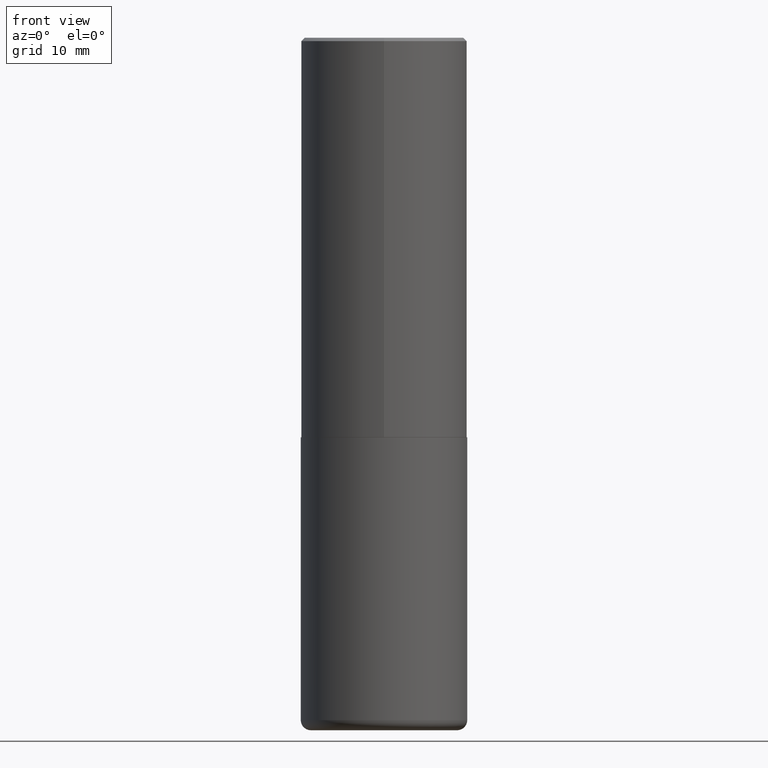
[diagram: clean part render]
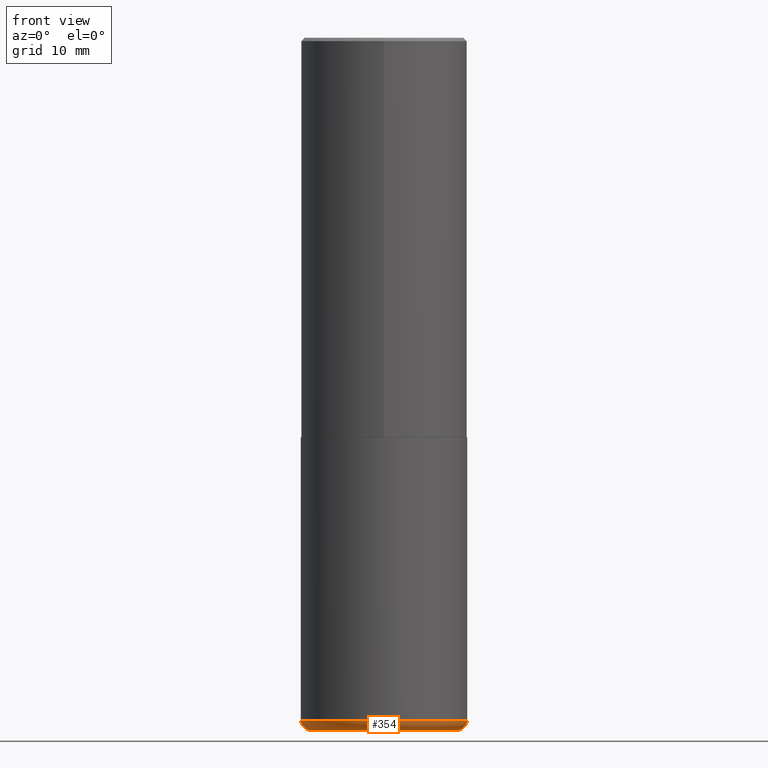
[diagram: same view with one face highlighted and labeled with its STEP entity id]
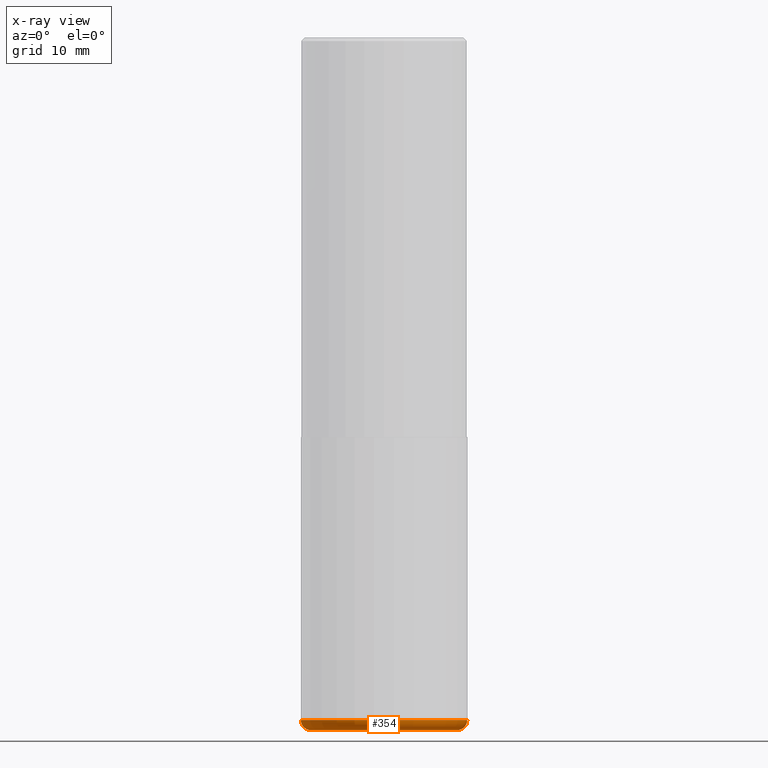
[diagram: x-ray of the same camera — body ghosted, the highlighted face saturated]
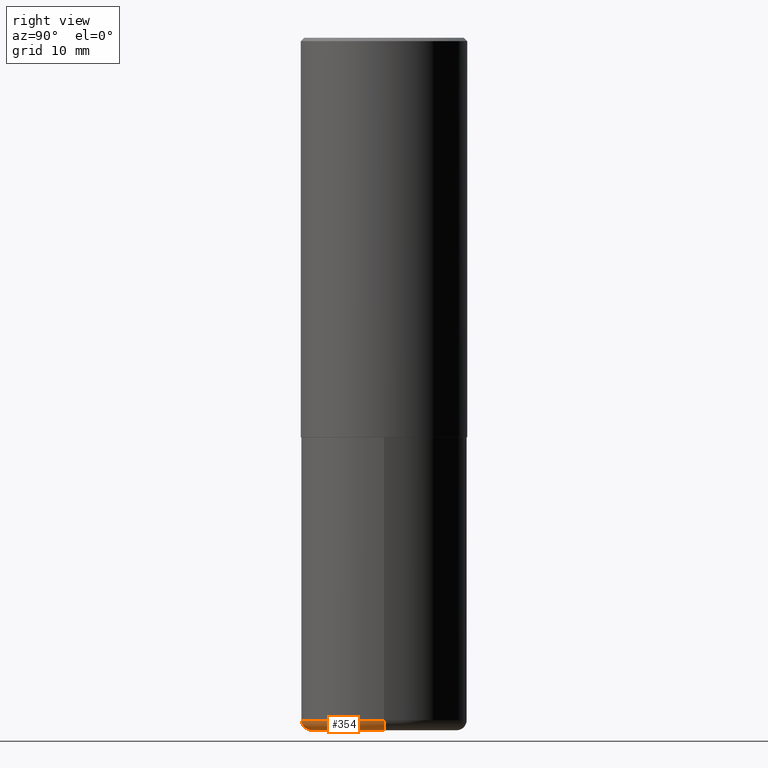
[diagram: same view with one face highlighted and labeled with its STEP entity id]
A machine part, front view. The second image highlights one B-rep face of the part: STEP entity #354.
The next image is the same camera in x-ray: the body ghosted, the highlighted face saturated — about 0% of this face is hidden behind the body in this view.
A second angle (right view) of the same face is appended — the face is thin or edge-on in the first view.
In plain terms, the highlighted toroidal blend (fillet) surface has major radius 10.9817 mm and minor (blend) radius 1.5189 mm.
Its self-contained STEP definition (entity closure, byte-faithful):
#1 = CARTESIAN_POINT ( 'NONE',  ( -0.4323499999999999566, -1.090699125381078817E-14, -4.094500000000000917 ) ) ;
#4 = AXIS2_PLACEMENT_3D ( 'NONE', #152, #90, #118 ) ;
#23 = AXIS2_PLACEMENT_3D ( 'NONE', #158, #127, #133 ) ;
#29 = VERTEX_POINT ( 'NONE', #366 ) ;
#42 = ORIENTED_EDGE ( 'NONE', *, *, #200, .F. ) ;
#46 = AXIS2_PLACEMENT_3D ( 'NONE', #383, #413, #93 ) ;
#61 = CARTESIAN_POINT ( 'NONE',  ( 0.4921500000000000874, -1.752374483965373598E-14, -4.034700000000000841 ) ) ;
#66 = CIRCLE ( 'NONE', #409, 0.4921500000000000319 ) ;
#69 = ORIENTED_EDGE ( 'NONE', *, *, #372, .T. ) ;
#71 = ORIENTED_EDGE ( 'NONE', *, *, #405, .T. ) ;
#90 = DIRECTION ( 'NONE',  ( -2.445468806185136597E-29, 3.491481338843145583E-15, 1.000000000000000000 ) ) ;
#93 = DIRECTION ( 'NONE',  ( 1.000000000000000000, -6.982962677686264344E-15, 4.883557194083111780E-29 ) ) ;
#102 = EDGE_CURVE ( 'NONE', #357, #289, #66, .T. ) ;
#111 = AXIS2_PLACEMENT_3D ( 'NONE', #275, #147, #247 ) ;
#118 = DIRECTION ( 'NONE',  ( 1.000000000000000000, -6.982962677686265133E-15, 0.000000000000000000 ) ) ;
#127 = DIRECTION ( 'NONE',  ( -6.982962677686266711E-15, -1.000000000000000000, 3.491481338843145583E-15 ) ) ;
#133 = DIRECTION ( 'NONE',  ( 1.000000000000000000, -6.982962677686294321E-15, 0.000000000000000000 ) ) ;
#143 = DIRECTION ( 'NONE',  ( -2.445468806185136597E-29, 3.491481338843145583E-15, 1.000000000000000000 ) ) ;
#147 = DIRECTION ( 'NONE',  ( 7.105427357601001859E-15, 1.000000000000000000, -3.491481338843145583E-15 ) ) ;
#152 = CARTESIAN_POINT ( 'NONE',  ( 1.001297202692504327E-28, -1.429587034189326465E-14, -4.094500000000000917 ) ) ;
#153 = CIRCLE ( 'NONE', #23, 0.05980000000000013777 ) ;
#158 = CARTESIAN_POINT ( 'NONE',  ( 0.4323499999999999566, -1.710616367152809970E-14, -4.034700000000000841 ) ) ;
#169 = CARTESIAN_POINT ( 'NONE',  ( 9.866732992315171563E-29, -1.408707975783044020E-14, -4.034700000000000841 ) ) ;
#200 = EDGE_CURVE ( 'NONE', #418, #357, #237, .T. ) ;
#224 = TOROIDAL_SURFACE ( 'NONE', #46, 0.4323499999999999566, 0.05980000000000017246 ) ;
#228 = ORIENTED_EDGE ( 'NONE', *, *, #102, .F. ) ;
#231 = CIRCLE ( 'NONE', #4, 0.4323499999999999566 ) ;
#237 = CIRCLE ( 'NONE', #111, 0.05980000000000013777 ) ;
#247 = DIRECTION ( 'NONE',  ( -1.000000000000000000, 7.105427357601017636E-15, 0.000000000000000000 ) ) ;
#248 = CARTESIAN_POINT ( 'NONE',  ( -0.4921500000000000874, -1.059014368378710651E-14, -4.034700000000000841 ) ) ;
#273 = FACE_OUTER_BOUND ( 'NONE', #397, .T. ) ;
#275 = CARTESIAN_POINT ( 'NONE',  ( -0.4323499999999999566, -1.101504823977164696E-14, -4.034700000000000841 ) ) ;
#289 = VERTEX_POINT ( 'NONE', #61 ) ;
#354 = ADVANCED_FACE ( 'NONE', ( #273 ), #224, .T. ) ;
#357 = VERTEX_POINT ( 'NONE', #248 ) ;
#366 = CARTESIAN_POINT ( 'NONE',  ( 0.4323499999999999566, -1.731495425559091942E-14, -4.094500000000000917 ) ) ;
#372 = EDGE_CURVE ( 'NONE', #418, #29, #231, .T. ) ;
#373 = DIRECTION ( 'NONE',  ( 1.000000000000000000, -6.982962677686265133E-15, 0.000000000000000000 ) ) ;
#383 = CARTESIAN_POINT ( 'NONE',  ( 9.866732992315171563E-29, -1.408707975783044020E-14, -4.034700000000000841 ) ) ;
#397 = EDGE_LOOP ( 'NONE', ( #42, #69, #71, #228 ) ) ;
#405 = EDGE_CURVE ( 'NONE', #29, #289, #153, .T. ) ;
#409 = AXIS2_PLACEMENT_3D ( 'NONE', #169, #143, #373 ) ;
#413 = DIRECTION ( 'NONE',  ( -2.445468806185136597E-29, 3.491481338843145583E-15, 1.000000000000000000 ) ) ;
#418 = VERTEX_POINT ( 'NONE', #1 ) ;